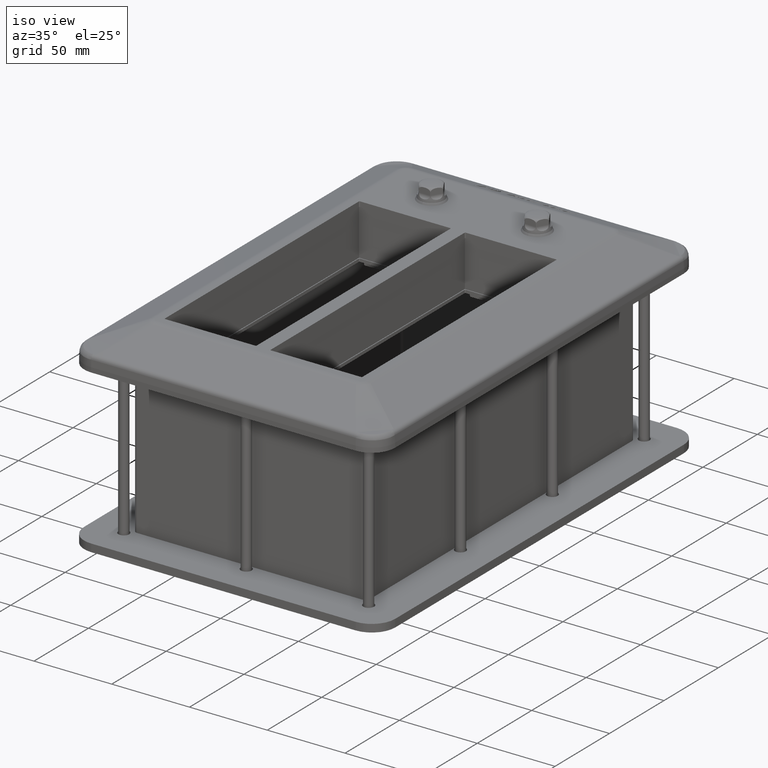
[diagram: clean part render]
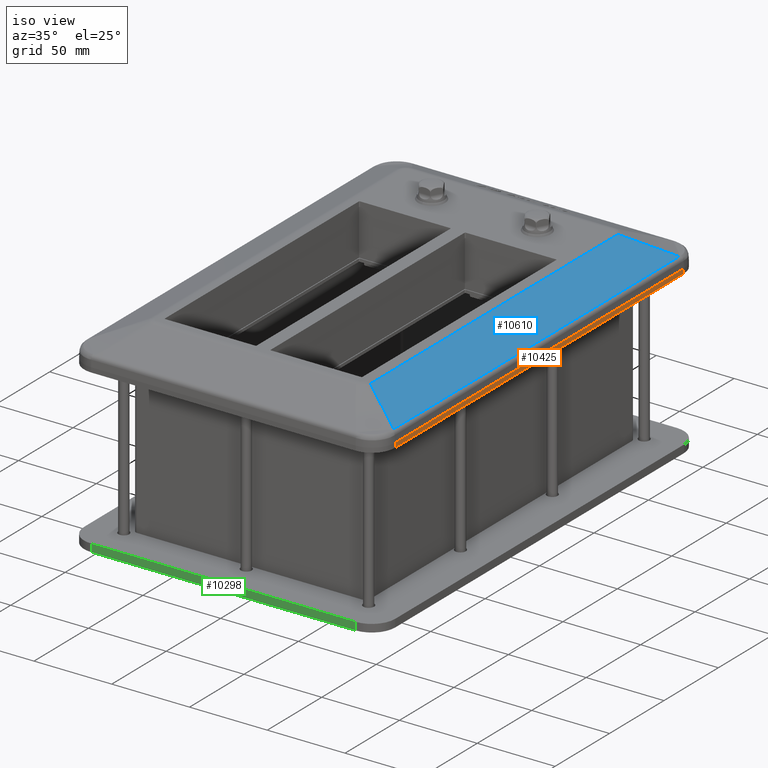
[diagram: same view with three faces highlighted in distinct colors, each labeled with its STEP entity id]
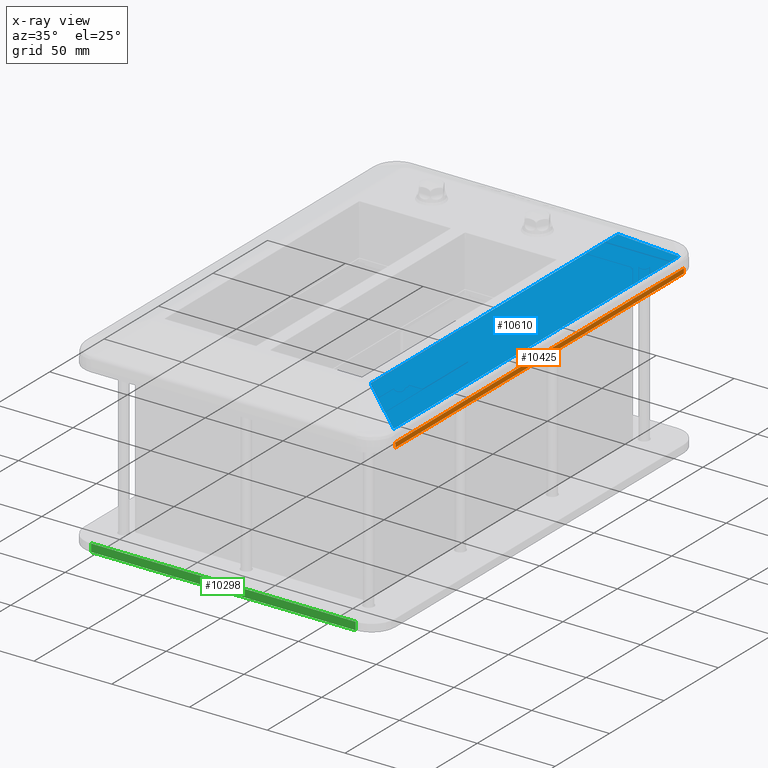
[diagram: x-ray of the same camera — body ghosted, the three highlighted faces saturated]
A machine part, iso view with three faces highlighted in distinct colors.
The next image is the same camera in x-ray (body ghosted, the three faces saturated) — at least one of them is partly hidden behind the body in this view.
Their STEP definitions:

[orange] entity #10425 — the highlighted planar face has unit normal (1, 0, 0).
#815=PLANE('',#11364);
#1286=FACE_OUTER_BOUND('',#1932,.T.);
#1932=EDGE_LOOP('',(#8010,#8011,#8012,#8013));
#2480=LINE('',#17002,#3152);
#2481=LINE('',#17007,#3153);
#2482=LINE('',#17009,#3154);
#2483=LINE('',#17010,#3155);
#3152=VECTOR('',#13248,10.);
#3153=VECTOR('',#13255,10.);
#3154=VECTOR('',#13256,10.);
#3155=VECTOR('',#13257,10.);
#4511=VERTEX_POINT('',#17000);
#4512=VERTEX_POINT('',#17001);
#4513=VERTEX_POINT('',#17006);
#4514=VERTEX_POINT('',#17008);
#5759=EDGE_CURVE('',#4511,#4512,#2480,.T.);
#5762=EDGE_CURVE('',#4513,#4512,#2481,.T.);
#5763=EDGE_CURVE('',#4514,#4513,#2482,.T.);
#5764=EDGE_CURVE('',#4511,#4514,#2483,.T.);
#8010=ORIENTED_EDGE('',*,*,#5759,.T.);
#8011=ORIENTED_EDGE('',*,*,#5762,.F.);
#8012=ORIENTED_EDGE('',*,*,#5763,.F.);
#8013=ORIENTED_EDGE('',*,*,#5764,.F.);
#10425=ADVANCED_FACE('',(#1286),#815,.T.);
#11364=AXIS2_PLACEMENT_3D('',#17005,#13253,#13254);
#13248=DIRECTION('',(0.,0.,-1.));
#13253=DIRECTION('center_axis',(1.,0.,0.));
#13254=DIRECTION('ref_axis',(0.,-1.,0.));
#13255=DIRECTION('',(0.,-1.,0.));
#13256=DIRECTION('',(0.,0.,-1.));
#13257=DIRECTION('',(6.70323335622736E-17,1.,0.));
#17000=CARTESIAN_POINT('',(100.,-132.5,-16.8));
#17001=CARTESIAN_POINT('',(100.,-132.5,-19.8));
#17002=CARTESIAN_POINT('',(100.,-132.5,-16.8));
#17005=CARTESIAN_POINT('Origin',(100.,132.5,-16.8));
#17006=CARTESIAN_POINT('',(100.,132.5,-19.8));
#17007=CARTESIAN_POINT('',(100.,132.5,-19.8));
#17008=CARTESIAN_POINT('',(100.,132.5,-16.8));
#17009=CARTESIAN_POINT('',(100.,132.5,-16.8));
#17010=CARTESIAN_POINT('',(100.,-66.2500000000001,-16.8));

[blue] entity #10610 — the highlighted planar face has unit normal (-0.4149, -0, -0.9099).
#933=PLANE('',#11568);
#1471=FACE_OUTER_BOUND('',#2140,.T.);
#2140=EDGE_LOOP('',(#8999,#9000,#9001,#9002));
#2843=LINE('',#18711,#3515);
#2845=LINE('',#18719,#3517);
#2846=LINE('',#18721,#3518);
#2847=LINE('',#18722,#3519);
#3515=VECTOR('',#14019,10.);
#3517=VECTOR('',#14027,10.);
#3518=VECTOR('',#14028,10.);
#3519=VECTOR('',#14029,10.);
#4843=VERTEX_POINT('',#18709);
#4844=VERTEX_POINT('',#18710);
#4847=VERTEX_POINT('',#18718);
#4848=VERTEX_POINT('',#18720);
#6258=EDGE_CURVE('',#4843,#4844,#2843,.T.);
#6262=EDGE_CURVE('',#4844,#4847,#2845,.T.);
#6263=EDGE_CURVE('',#4843,#4848,#2846,.T.);
#6264=EDGE_CURVE('',#4847,#4848,#2847,.T.);
#8999=ORIENTED_EDGE('',*,*,#6262,.F.);
#9000=ORIENTED_EDGE('',*,*,#6258,.F.);
#9001=ORIENTED_EDGE('',*,*,#6263,.T.);
#9002=ORIENTED_EDGE('',*,*,#6264,.F.);
#10610=ADVANCED_FACE('',(#1471),#933,.F.);
#11568=AXIS2_PLACEMENT_3D('',#18717,#14025,#14026);
#14019=DIRECTION('',(-7.40086443954065E-17,1.,0.));
#14025=DIRECTION('center_axis',(-0.414919098398359,-3.07076000062268E-17,
-0.909858308630686));
#14026=DIRECTION('ref_axis',(-0.909858308630686,2.77333911991762E-32,0.414919098398359));
#14027=DIRECTION('',(0.782692255466614,0.50989723483167,-0.356928064382169));
#14028=DIRECTION('',(0.782692255466614,-0.50989723483167,-0.356928064382169));
#14029=DIRECTION('',(-7.04856478842382E-17,-1.,6.58931626030953E-17));
#18709=CARTESIAN_POINT('',(70.8813428143074,-113.530190758506,2.47886646904549));
#18710=CARTESIAN_POINT('',(70.8813428143075,113.530190758506,2.4788664690455));
#18711=CARTESIAN_POINT('',(70.8813428143074,-112.5,2.47886646904549));
#18717=CARTESIAN_POINT('Origin',(69.3000000000001,-112.5,3.2));
#18718=CARTESIAN_POINT('',(98.0219710076899,131.211381763967,-9.8979672347771));
#18719=CARTESIAN_POINT('',(69.3,112.5,3.2));
#18720=CARTESIAN_POINT('',(98.0219710076899,-131.211381763967,-9.8979672347771));
#18721=CARTESIAN_POINT('',(69.3000000000001,-112.5,3.2));
#18722=CARTESIAN_POINT('',(98.0219710076899,-122.5,-9.8979672347771));

[green] entity #10298 — the highlighted planar face has unit normal (-0, -1, -0).
#773=PLANE('',#11124);
#1159=FACE_OUTER_BOUND('',#1793,.T.);
#1793=EDGE_LOOP('',(#7405,#7406,#7407,#7408));
#2245=LINE('',#14517,#2917);
#2326=LINE('',#15971,#2998);
#2344=LINE('',#16014,#3016);
#2347=LINE('',#16022,#3019);
#2917=VECTOR('',#11837,10.);
#2998=VECTOR('',#12580,10.);
#3016=VECTOR('',#12630,10.);
#3019=VECTOR('',#12639,10.);
#4050=VERTEX_POINT('',#14515);
#4051=VERTEX_POINT('',#14516);
#4319=VERTEX_POINT('',#15967);
#4329=VERTEX_POINT('',#16013);
#5025=EDGE_CURVE('',#4050,#4051,#2245,.T.);
#5445=EDGE_CURVE('',#4051,#4319,#2326,.T.);
#5466=EDGE_CURVE('',#4329,#4319,#2344,.T.);
#5471=EDGE_CURVE('',#4329,#4050,#2347,.T.);
#7405=ORIENTED_EDGE('',*,*,#5025,.F.);
#7406=ORIENTED_EDGE('',*,*,#5471,.F.);
#7407=ORIENTED_EDGE('',*,*,#5466,.T.);
#7408=ORIENTED_EDGE('',*,*,#5445,.F.);
#10298=ADVANCED_FACE('',(#1159),#773,.T.);
#11124=AXIS2_PLACEMENT_3D('',#16023,#12640,#12641);
#11837=DIRECTION('',(-1.,1.79793202368446E-16,4.52935671935235E-155));
#12580=DIRECTION('',(0.,0.,1.));
#12630=DIRECTION('',(-1.,1.79793202368446E-16,4.52935671935235E-155));
#12639=DIRECTION('',(0.,2.51920354033766E-139,-1.));
#12640=DIRECTION('center_axis',(-1.79793202368446E-16,-1.,-2.51920354033766E-139));
#12641=DIRECTION('ref_axis',(-1.,1.79793202368446E-16,4.52935671935235E-155));
#14515=CARTESIAN_POINT('',(85.,-147.5,-124.2));
#14516=CARTESIAN_POINT('',(-85.,-147.5,-124.2));
#14517=CARTESIAN_POINT('',(99.3,-147.5,-124.2));
#15967=CARTESIAN_POINT('',(-85.,-147.5,-119.2));
#15971=CARTESIAN_POINT('',(-85.,-147.5,-124.2));
#16013=CARTESIAN_POINT('',(85.,-147.5,-119.2));
#16014=CARTESIAN_POINT('',(99.3,-147.5,-119.2));
#16022=CARTESIAN_POINT('',(85.,-147.5,-119.2));
#16023=CARTESIAN_POINT('Origin',(99.3,-147.5,-119.2));